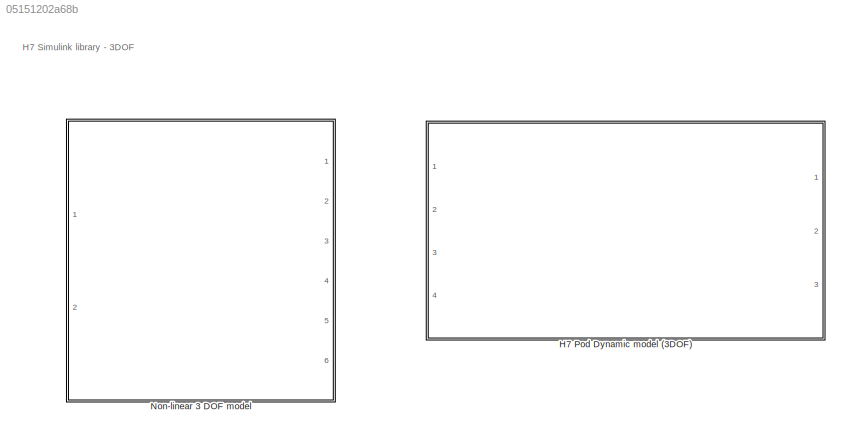
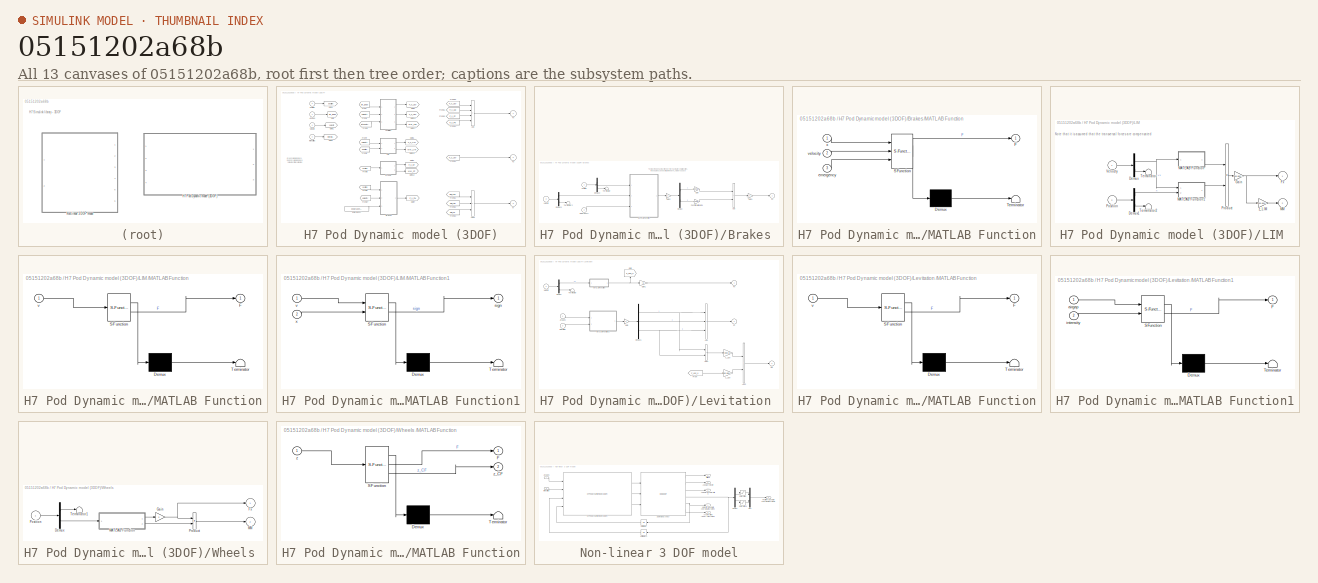
[diagram: thumbnail index - all 13 canvases of the model, root first then tree order]
MODEL slx_05151202a68b
KIND library
CONFIG AbsTol = auto
CONFIG EnableMultiTasking = off
CONFIG FixedStep = auto
CONFIG MaxStep = auto
CONFIG MinStep = auto
CONFIG RelTol = 1e-3
CONFIG SampleTimeConstraint = Unconstrained
CONFIG SolverName = VariableStepAuto
CONFIG StartTime = 0.0
CONFIG StopTime = 10.0
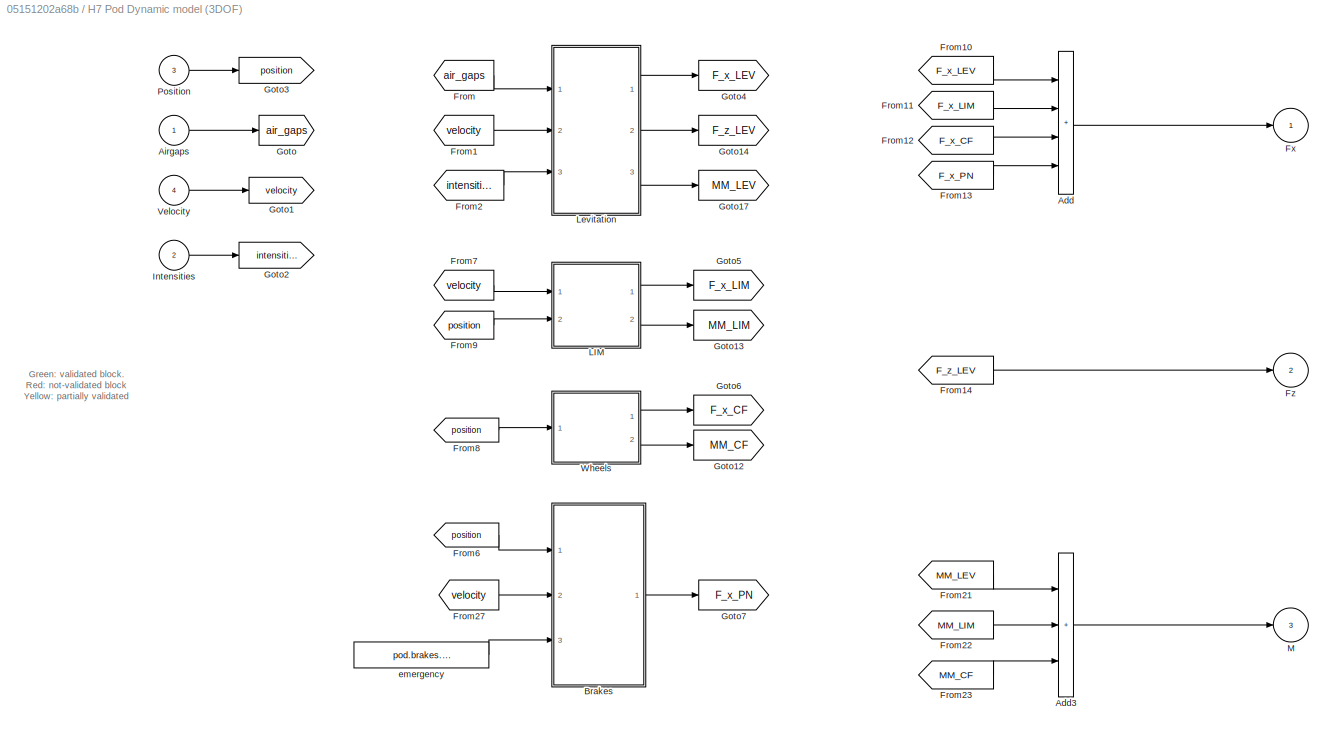
BLOCK [SubSystem] H7 Pod Dynamic model (3DOF)
  Ports = [4, 3]
  RequestExecContextInheritance = off
BLOCK [Sum] H7 Pod Dynamic model (3DOF)/Add
  IconShape = rectangular
  Inputs = ++++
  Ports = [4, 1]
BLOCK [Sum] H7 Pod Dynamic model (3DOF)/Add3
  IconShape = rectangular
  Inputs = +++
  Ports = [3, 1]
BLOCK [Inport] H7 Pod Dynamic model (3DOF)/Airgaps
BLOCK [SubSystem] H7 Pod Dynamic model (3DOF)/Brakes 
  AncestorBlock = libH7/H7 Pod Dynamic model/Brakes
  Ports = [3, 1]
  RequestExecContextInheritance = off
BLOCK [Sum] H7 Pod Dynamic model (3DOF)/Brakes /Add
  IconShape = rectangular
  Ports = [2, 1]
BLOCK [Demux] H7 Pod Dynamic model (3DOF)/Brakes /Demux
  Outputs = 2
  Ports = [1, 2]
BLOCK [Demux] H7 Pod Dynamic model (3DOF)/Brakes /Demux2
  Outputs = 2
  Ports = [1, 2]
BLOCK [Demux] H7 Pod Dynamic model (3DOF)/Brakes /Demux3
  Outputs = 2
  Ports = [1, 2]
BLOCK [Inport] H7 Pod Dynamic model (3DOF)/Brakes /Emergency
  Port = 3
BLOCK [Gain] H7 Pod Dynamic model (3DOF)/Brakes /Functionality gains
  Gain = pod.brakes.working_actuators(2)
BLOCK [Outport] H7 Pod Dynamic model (3DOF)/Brakes /Fx
BLOCK [Gain] H7 Pod Dynamic model (3DOF)/Brakes /Gain
  Gain = pod.brakes.working_actuators(1)
BLOCK [Gain] H7 Pod Dynamic model (3DOF)/Brakes /Gain1
  Gain = -1
BLOCK [Gain] H7 Pod Dynamic model (3DOF)/Brakes /Gain2
  Gain = 2
BLOCK [SubSystem] H7 Pod Dynamic model (3DOF)/Brakes /MATLAB Function
  ErrorFcn = Stateflow.Translate.translate
  PermitHierarchicalResolution = ExplicitOnly
  Ports = [3, 1]
  RequestExecContextInheritance = off
  SFBlockType = MATLAB Function
  TreatAsAtomicUnit = on
BLOCK [Demux] H7 Pod Dynamic model (3DOF)/Brakes /MATLAB Function/ Demux 
  Outputs = 1
  Ports = [1, 1]
BLOCK [S-Function] H7 Pod Dynamic model (3DOF)/Brakes /MATLAB Function/ SFunction 
  EnableBusSupport = off
  FunctionName = sf_sfun
  Parameters = pod
  PortCounts = [3 2]
  Ports = [3, 2]
  SFcnIsStateOwnerBlock = off
  SFunctionDeploymentMode = off
  Tag = Stateflow S-Function 16
BLOCK [Terminator] H7 Pod Dynamic model (3DOF)/Brakes /MATLAB Function/ Terminator 
BLOCK [Outport] H7 Pod Dynamic model (3DOF)/Brakes /MATLAB Function/F
BLOCK [Inport] H7 Pod Dynamic model (3DOF)/Brakes /MATLAB Function/emergency
  Port = 3
BLOCK [Inport] H7 Pod Dynamic model (3DOF)/Brakes /MATLAB Function/velocity
  Port = 2
BLOCK [Inport] H7 Pod Dynamic model (3DOF)/Brakes /MATLAB Function/x
BLOCK [Inport] H7 Pod Dynamic model (3DOF)/Brakes /Position
BLOCK [Terminator] H7 Pod Dynamic model (3DOF)/Brakes /Terminator
BLOCK [Terminator] H7 Pod Dynamic model (3DOF)/Brakes /Terminator2
BLOCK [Inport] H7 Pod Dynamic model (3DOF)/Brakes /velocity
  Port = 2
BLOCK [From] H7 Pod Dynamic model (3DOF)/From
  GotoTag = air_gaps
BLOCK [From] H7 Pod Dynamic model (3DOF)/From1
  GotoTag = velocity
BLOCK [From] H7 Pod Dynamic model (3DOF)/From10
  GotoTag = F_x_LEV
BLOCK [From] H7 Pod Dynamic model (3DOF)/From11
  GotoTag = F_x_LIM
BLOCK [From] H7 Pod Dynamic model (3DOF)/From12
  Commented = on
  GotoTag = F_x_CF
BLOCK [From] H7 Pod Dynamic model (3DOF)/From13
  GotoTag = F_x_PN
BLOCK [From] H7 Pod Dynamic model (3DOF)/From14
  GotoTag = F_z_LEV
BLOCK [From] H7 Pod Dynamic model (3DOF)/From2
  GotoTag = intensities
BLOCK [From] H7 Pod Dynamic model (3DOF)/From21
  GotoTag = MM_LEV
BLOCK [From] H7 Pod Dynamic model (3DOF)/From22
  GotoTag = MM_LIM
BLOCK [From] H7 Pod Dynamic model (3DOF)/From23
  Commented = on
  GotoTag = MM_CF
BLOCK [From] H7 Pod Dynamic model (3DOF)/From27
  GotoTag = velocity
BLOCK [From] H7 Pod Dynamic model (3DOF)/From6
  GotoTag = position
BLOCK [From] H7 Pod Dynamic model (3DOF)/From7
  GotoTag = velocity
BLOCK [From] H7 Pod Dynamic model (3DOF)/From8
  Commented = on
  GotoTag = position
BLOCK [From] H7 Pod Dynamic model (3DOF)/From9
  GotoTag = position
BLOCK [Outport] H7 Pod Dynamic model (3DOF)/Fx
BLOCK [Outport] H7 Pod Dynamic model (3DOF)/Fz
  Port = 2
BLOCK [Goto] H7 Pod Dynamic model (3DOF)/Goto
  GotoTag = air_gaps
BLOCK [Goto] H7 Pod Dynamic model (3DOF)/Goto1
  GotoTag = velocity
BLOCK [Goto] H7 Pod Dynamic model (3DOF)/Goto12
  Commented = on
  GotoTag = MM_CF
BLOCK [Goto] H7 Pod Dynamic model (3DOF)/Goto13
  GotoTag = MM_LIM
BLOCK [Goto] H7 Pod Dynamic model (3DOF)/Goto14
  GotoTag = F_z_LEV
BLOCK [Goto] H7 Pod Dynamic model (3DOF)/Goto17
  GotoTag = MM_LEV
BLOCK [Goto] H7 Pod Dynamic model (3DOF)/Goto2
  GotoTag = intensities
BLOCK [Goto] H7 Pod Dynamic model (3DOF)/Goto3
  GotoTag = position
BLOCK [Goto] H7 Pod Dynamic model (3DOF)/Goto4
  GotoTag = F_x_LEV
BLOCK [Goto] H7 Pod Dynamic model (3DOF)/Goto5
  GotoTag = F_x_LIM
BLOCK [Goto] H7 Pod Dynamic model (3DOF)/Goto6
  Commented = on
  GotoTag = F_x_CF
BLOCK [Goto] H7 Pod Dynamic model (3DOF)/Goto7
  GotoTag = F_x_PN
BLOCK [Inport] H7 Pod Dynamic model (3DOF)/Intensities
  Port = 2
BLOCK [SubSystem] H7 Pod Dynamic model (3DOF)/LIM 
  AncestorBlock = libH7/H7 Pod Dynamic model/LIM
  Ports = [2, 2]
  RequestExecContextInheritance = off
BLOCK [Demux] H7 Pod Dynamic model (3DOF)/LIM /Demux
  Outputs = 2
  Ports = [1, 2]
BLOCK [Demux] H7 Pod Dynamic model (3DOF)/LIM /Demux1
  Outputs = 2
  Ports = [1, 2]
BLOCK [Outport] H7 Pod Dynamic model (3DOF)/LIM /Fx
BLOCK [Gain] H7 Pod Dynamic model (3DOF)/LIM /Gain
  Gain = pod.general.propulsion_on
BLOCK [SubSystem] H7 Pod Dynamic model (3DOF)/LIM /MATLAB Function
  ErrorFcn = Stateflow.Translate.translate
  PermitHierarchicalResolution = ExplicitOnly
  Ports = [1, 1]
  RequestExecContextInheritance = off
  SFBlockType = MATLAB Function
  TreatAsAtomicUnit = on
BLOCK [Demux] H7 Pod Dynamic model (3DOF)/LIM /MATLAB Function/ Demux 
  Outputs = 1
  Ports = [1, 1]
BLOCK [S-Function] H7 Pod Dynamic model (3DOF)/LIM /MATLAB Function/ SFunction 
  EnableBusSupport = off
  FunctionName = sf_sfun
  Parameters = pod
  PortCounts = [1 2]
  Ports = [1, 2]
  SFcnIsStateOwnerBlock = off
  SFunctionDeploymentMode = off
  Tag = Stateflow S-Function 17
BLOCK [Terminator] H7 Pod Dynamic model (3DOF)/LIM /MATLAB Function/ Terminator 
BLOCK [Outport] H7 Pod Dynamic model (3DOF)/LIM /MATLAB Function/F
BLOCK [Inport] H7 Pod Dynamic model (3DOF)/LIM /MATLAB Function/v
BLOCK [SubSystem] H7 Pod Dynamic model (3DOF)/LIM /MATLAB Function1
  ErrorFcn = Stateflow.Translate.translate
  PermitHierarchicalResolution = ExplicitOnly
  Ports = [2, 1]
  RequestExecContextInheritance = off
  SFBlockType = MATLAB Function
  TreatAsAtomicUnit = on
BLOCK [Demux] H7 Pod Dynamic model (3DOF)/LIM /MATLAB Function1/ Demux 
  Outputs = 1
  Ports = [1, 1]
BLOCK [S-Function] H7 Pod Dynamic model (3DOF)/LIM /MATLAB Function1/ SFunction 
  EnableBusSupport = off
  FunctionName = sf_sfun
  Parameters = pod
  PortCounts = [2 2]
  Ports = [2, 2]
  SFcnIsStateOwnerBlock = off
  SFunctionDeploymentMode = off
  Tag = Stateflow S-Function 18
BLOCK [Terminator] H7 Pod Dynamic model (3DOF)/LIM /MATLAB Function1/ Terminator 
BLOCK [Outport] H7 Pod Dynamic model (3DOF)/LIM /MATLAB Function1/sign
BLOCK [Inport] H7 Pod Dynamic model (3DOF)/LIM /MATLAB Function1/v
BLOCK [Inport] H7 Pod Dynamic model (3DOF)/LIM /MATLAB Function1/x
  Port = 2
BLOCK [Outport] H7 Pod Dynamic model (3DOF)/LIM /MM
  Port = 2
BLOCK [Inport] H7 Pod Dynamic model (3DOF)/LIM /Position
  Port = 2
BLOCK [Product] H7 Pod Dynamic model (3DOF)/LIM /Product
  Ports = [2, 1]
BLOCK [Terminator] H7 Pod Dynamic model (3DOF)/LIM /Terminator
BLOCK [Terminator] H7 Pod Dynamic model (3DOF)/LIM /Terminator2
BLOCK [Inport] H7 Pod Dynamic model (3DOF)/LIM /Velocity
BLOCK [Gain] H7 Pod Dynamic model (3DOF)/LIM /z_LIM
  Gain = pod.geometry.z_LIM
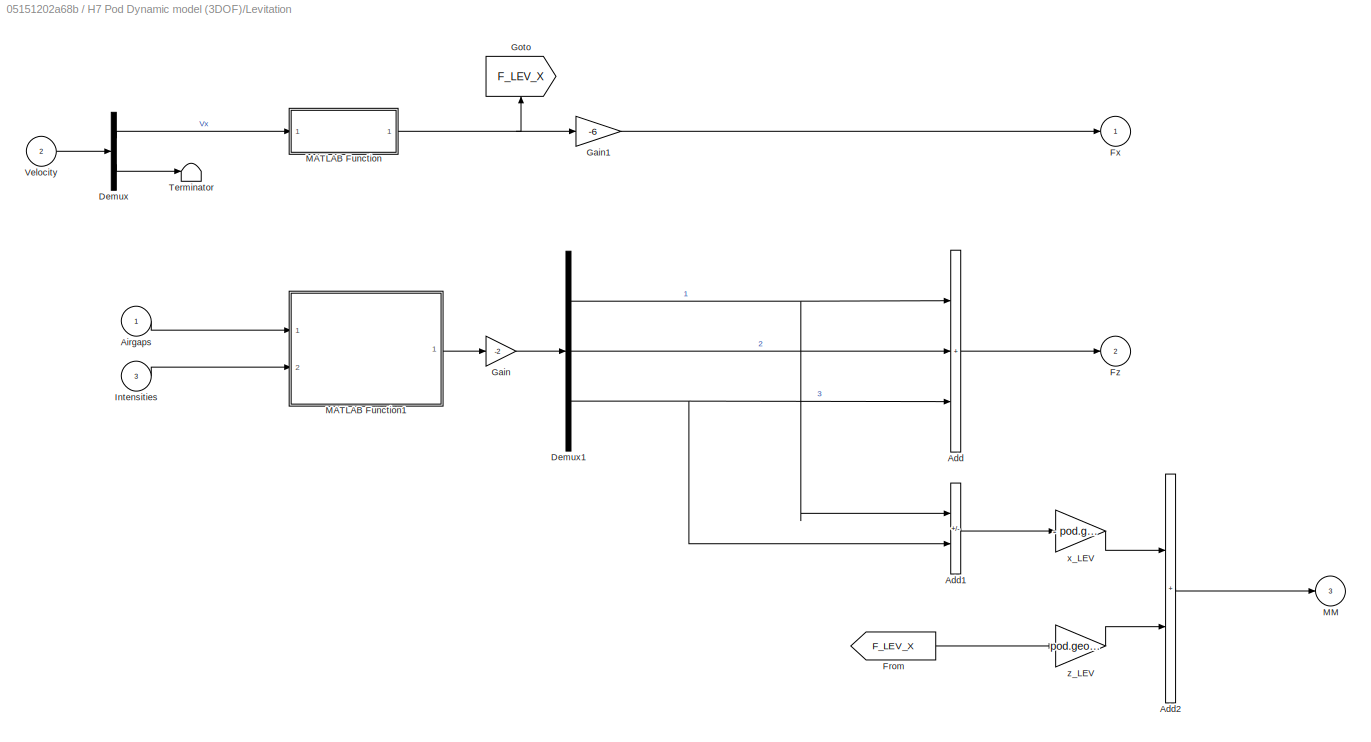
BLOCK [SubSystem] H7 Pod Dynamic model (3DOF)/Levitation 
  AncestorBlock = libH7/H7 Pod Dynamic model/Levitation
  Ports = [3, 3]
  RequestExecContextInheritance = off
BLOCK [Sum] H7 Pod Dynamic model (3DOF)/Levitation /Add
  IconShape = rectangular
  Inputs = +++
  Ports = [3, 1]
BLOCK [Sum] H7 Pod Dynamic model (3DOF)/Levitation /Add1
  IconShape = rectangular
  Inputs = +-
  Ports = [2, 1]
BLOCK [Sum] H7 Pod Dynamic model (3DOF)/Levitation /Add2
  IconShape = rectangular
  Ports = [2, 1]
BLOCK [Inport] H7 Pod Dynamic model (3DOF)/Levitation /Airgaps
BLOCK [Demux] H7 Pod Dynamic model (3DOF)/Levitation /Demux
  Outputs = 2
  Ports = [1, 2]
BLOCK [Demux] H7 Pod Dynamic model (3DOF)/Levitation /Demux1
  Outputs = 3
  Ports = [1, 3]
BLOCK [From] H7 Pod Dynamic model (3DOF)/Levitation /From
  GotoTag = F_LEV_X
BLOCK [Outport] H7 Pod Dynamic model (3DOF)/Levitation /Fx
BLOCK [Outport] H7 Pod Dynamic model (3DOF)/Levitation /Fz
  Port = 2
BLOCK [Gain] H7 Pod Dynamic model (3DOF)/Levitation /Gain
  Gain = -2
BLOCK [Gain] H7 Pod Dynamic model (3DOF)/Levitation /Gain1
  Gain = -6
BLOCK [Goto] H7 Pod Dynamic model (3DOF)/Levitation /Goto
  GotoTag = F_LEV_X
  NameLocation = right
BLOCK [Inport] H7 Pod Dynamic model (3DOF)/Levitation /Intensities
  Port = 3
BLOCK [SubSystem] H7 Pod Dynamic model (3DOF)/Levitation /MATLAB Function
  ErrorFcn = Stateflow.Translate.translate
  PermitHierarchicalResolution = ExplicitOnly
  Ports = [1, 1]
  RequestExecContextInheritance = off
  SFBlockType = MATLAB Function
  TreatAsAtomicUnit = on
BLOCK [Demux] H7 Pod Dynamic model (3DOF)/Levitation /MATLAB Function/ Demux 
  Outputs = 1
  Ports = [1, 1]
BLOCK [S-Function] H7 Pod Dynamic model (3DOF)/Levitation /MATLAB Function/ SFunction 
  EnableBusSupport = off
  FunctionName = sf_sfun
  Parameters = pod
  PortCounts = [1 2]
  Ports = [1, 2]
  SFcnIsStateOwnerBlock = off
  SFunctionDeploymentMode = off
  Tag = Stateflow S-Function 19
BLOCK [Terminator] H7 Pod Dynamic model (3DOF)/Levitation /MATLAB Function/ Terminator 
BLOCK [Outport] H7 Pod Dynamic model (3DOF)/Levitation /MATLAB Function/F
BLOCK [Inport] H7 Pod Dynamic model (3DOF)/Levitation /MATLAB Function/v
BLOCK [SubSystem] H7 Pod Dynamic model (3DOF)/Levitation /MATLAB Function1
  ErrorFcn = Stateflow.Translate.translate
  PermitHierarchicalResolution = ExplicitOnly
  Ports = [2, 1]
  RequestExecContextInheritance = off
  SFBlockType = MATLAB Function
  TreatAsAtomicUnit = on
BLOCK [Demux] H7 Pod Dynamic model (3DOF)/Levitation /MATLAB Function1/ Demux 
  Outputs = 1
  Ports = [1, 1]
BLOCK [S-Function] H7 Pod Dynamic model (3DOF)/Levitation /MATLAB Function1/ SFunction 
  EnableBusSupport = off
  FunctionName = sf_sfun
  Parameters = pod
  PortCounts = [2 2]
  Ports = [2, 2]
  SFcnIsStateOwnerBlock = off
  SFunctionDeploymentMode = off
  Tag = Stateflow S-Function 20
BLOCK [Terminator] H7 Pod Dynamic model (3DOF)/Levitation /MATLAB Function1/ Terminator 
BLOCK [Outport] H7 Pod Dynamic model (3DOF)/Levitation /MATLAB Function1/F
BLOCK [Inport] H7 Pod Dynamic model (3DOF)/Levitation /MATLAB Function1/airgap
BLOCK [Inport] H7 Pod Dynamic model (3DOF)/Levitation /MATLAB Function1/intensity
  Port = 2
BLOCK [Outport] H7 Pod Dynamic model (3DOF)/Levitation /MM
  Port = 3
BLOCK [Terminator] H7 Pod Dynamic model (3DOF)/Levitation /Terminator
BLOCK [Inport] H7 Pod Dynamic model (3DOF)/Levitation /Velocity
  Port = 2
BLOCK [Gain] H7 Pod Dynamic model (3DOF)/Levitation /x_LEV
  Gain = - pod.geometry.x_LEV
BLOCK [Gain] H7 Pod Dynamic model (3DOF)/Levitation /z_LEV
  Gain = pod.geometry.z_LEV
BLOCK [Outport] H7 Pod Dynamic model (3DOF)/M
  Port = 3
BLOCK [Inport] H7 Pod Dynamic model (3DOF)/Position
  Port = 3
BLOCK [Inport] H7 Pod Dynamic model (3DOF)/Velocity
  Port = 4
BLOCK [SubSystem] H7 Pod Dynamic model (3DOF)/Wheels 
  AncestorBlock = libH7/H7 Pod Dynamic model/Wheels
  Commented = on
  Ports = [1, 2]
  RequestExecContextInheritance = off
BLOCK [Demux] H7 Pod Dynamic model (3DOF)/Wheels /Demux
  Outputs = 2
  Ports = [1, 2]
BLOCK [Outport] H7 Pod Dynamic model (3DOF)/Wheels /Fx
BLOCK [Gain] H7 Pod Dynamic model (3DOF)/Wheels /Gain
  Gain = 2
BLOCK [SubSystem] H7 Pod Dynamic model (3DOF)/Wheels /MATLAB Function
  ErrorFcn = Stateflow.Translate.translate
  PermitHierarchicalResolution = ExplicitOnly
  Ports = [1, 2]
  RequestExecContextInheritance = off
  SFBlockType = MATLAB Function
  TreatAsAtomicUnit = on
BLOCK [Demux] H7 Pod Dynamic model (3DOF)/Wheels /MATLAB Function/ Demux 
  Outputs = 1
  Ports = [1, 1]
BLOCK [S-Function] H7 Pod Dynamic model (3DOF)/Wheels /MATLAB Function/ SFunction 
  EnableBusSupport = off
  FunctionName = sf_sfun
  Parameters = pod
  PortCounts = [1 3]
  Ports = [1, 3]
  SFcnIsStateOwnerBlock = off
  SFunctionDeploymentMode = off
  Tag = Stateflow S-Function 21
BLOCK [Terminator] H7 Pod Dynamic model (3DOF)/Wheels /MATLAB Function/ Terminator 
BLOCK [Outport] H7 Pod Dynamic model (3DOF)/Wheels /MATLAB Function/F
BLOCK [Inport] H7 Pod Dynamic model (3DOF)/Wheels /MATLAB Function/z
BLOCK [Outport] H7 Pod Dynamic model (3DOF)/Wheels /MATLAB Function/z_CF
  Port = 2
BLOCK [Outport] H7 Pod Dynamic model (3DOF)/Wheels /MM
  Port = 2
BLOCK [Inport] H7 Pod Dynamic model (3DOF)/Wheels /Position
BLOCK [Product] H7 Pod Dynamic model (3DOF)/Wheels /Product
  Ports = [2, 1]
BLOCK [Terminator] H7 Pod Dynamic model (3DOF)/Wheels /Terminator1
BLOCK [Constant] H7 Pod Dynamic model (3DOF)/emergency
  Value = pod.brakes.emergency_flag
BLOCK [SubSystem] Non-linear 3 DOF model
  Ports = [2, 6]
  RequestExecContextInheritance = off
BLOCK [EOM3DOF] Non-linear 3 DOF model/3dof (Body Axes)
  Iyy = pod.mass.inertia(2,2)
  Ports = [3, 6]
  mass = pod.mass.mass
  pos_ini = initial_conds.x_0(1:2:3)
  q_ini = initial_conds.w_0(2)
  theta_ini = initial_conds.ang_0(2)
  v_ini = 1e-10
BLOCK [Outport] Non-linear 3 DOF model/Acceleration (body-fixed coordinate system)
  Port = 3
BLOCK [Inport] Non-linear 3 DOF model/Airgaps
BLOCK [Outport] Non-linear 3 DOF model/Angular acceleration
  Port = 6
BLOCK [Outport] Non-linear 3 DOF model/Angular velocity
  Port = 5
BLOCK [Outport] Non-linear 3 DOF model/Attitude 
  Port = 4
BLOCK [Demux] Non-linear 3 DOF model/Demux
  Outputs = 2
  Ports = [1, 2]
BLOCK [Reference] Non-linear 3 DOF model/H7 Pod Dynamic model (3DOF)  REF=$bdroot/H7 Pod Dynamic model (3DOF)
  Ports = [4, 3]
  SourceBlock = $bdroot/H7 Pod Dynamic model (3DOF)
BLOCK [Inport] Non-linear 3 DOF model/Intensities
  Port = 2
BLOCK [Mux] Non-linear 3 DOF model/Mux
  DisplayOption = bar
  Inputs = 2
  Ports = [2, 1]
BLOCK [Outport] Non-linear 3 DOF model/Position (absolute coordinate system)
  Port = 2
BLOCK [Saturate] Non-linear 3 DOF model/Saturation
  LowerLimit = 0
  UpperLimit = 20
BLOCK [Saturate] Non-linear 3 DOF model/Saturation1
  LowerLimit = pod.geometry.z_LEV + 0.012
  UpperLimit = pod.geometry.z_LEV + 0.023
BLOCK [UnitDelay] Non-linear 3 DOF model/Unit Delay
  HasFrameUpgradeWarning = on
  InitialCondition = [0,0]
  NameLocation = top
  SampleTime = -1
BLOCK [UnitDelay] Non-linear 3 DOF model/Unit Delay1
  HasFrameUpgradeWarning = on
  InitialCondition = initial_conds.x_0(1:2:3)
  NameLocation = top
  SampleTime = -1
BLOCK [Outport] Non-linear 3 DOF model/Velocity (absolute coordinate system)
ANNOTATION (root): H7 Simulink library - 3DOF
ANNOTATION H7 Pod Dynamic model (3DOF): Green: validated block. Red: not-validated block Yellow: partially validated
ANNOTATION H7 Pod Dynamic model (3DOF)/Brakes : To study the behaviour if one or more actuators malfunction, these gains can be set to 0 in the MATLAB workspace
ANNOTATION H7 Pod Dynamic model (3DOF)/LIM : Note that it is assumed that the transversal forces are compensated
LINE H7 Pod Dynamic model (3DOF)/Add3:1 -> H7 Pod Dynamic model (3DOF)/M:1
LINE H7 Pod Dynamic model (3DOF)/Add:1 -> H7 Pod Dynamic model (3DOF)/Fx:1
LINE H7 Pod Dynamic model (3DOF)/Airgaps:1 -> H7 Pod Dynamic model (3DOF)/Goto:1
LINE H7 Pod Dynamic model (3DOF)/Brakes :1 -> H7 Pod Dynamic model (3DOF)/Goto7:1
LINE H7 Pod Dynamic model (3DOF)/From10:1 -> H7 Pod Dynamic model (3DOF)/Add:1
LINE H7 Pod Dynamic model (3DOF)/From11:1 -> H7 Pod Dynamic model (3DOF)/Add:2
LINE H7 Pod Dynamic model (3DOF)/From12:1 -> H7 Pod Dynamic model (3DOF)/Add:3
LINE H7 Pod Dynamic model (3DOF)/From13:1 -> H7 Pod Dynamic model (3DOF)/Add:4
LINE H7 Pod Dynamic model (3DOF)/From14:1 -> H7 Pod Dynamic model (3DOF)/Fz:1
LINE H7 Pod Dynamic model (3DOF)/From1:1 -> H7 Pod Dynamic model (3DOF)/Levitation :2
LINE H7 Pod Dynamic model (3DOF)/From21:1 -> H7 Pod Dynamic model (3DOF)/Add3:1
LINE H7 Pod Dynamic model (3DOF)/From22:1 -> H7 Pod Dynamic model (3DOF)/Add3:2
LINE H7 Pod Dynamic model (3DOF)/From23:1 -> H7 Pod Dynamic model (3DOF)/Add3:3
LINE H7 Pod Dynamic model (3DOF)/From27:1 -> H7 Pod Dynamic model (3DOF)/Brakes :2
LINE H7 Pod Dynamic model (3DOF)/From2:1 -> H7 Pod Dynamic model (3DOF)/Levitation :3
LINE H7 Pod Dynamic model (3DOF)/From6:1 -> H7 Pod Dynamic model (3DOF)/Brakes :1
LINE H7 Pod Dynamic model (3DOF)/From7:1 -> H7 Pod Dynamic model (3DOF)/LIM :1
LINE H7 Pod Dynamic model (3DOF)/From8:1 -> H7 Pod Dynamic model (3DOF)/Wheels :1
LINE H7 Pod Dynamic model (3DOF)/From9:1 -> H7 Pod Dynamic model (3DOF)/LIM :2
LINE H7 Pod Dynamic model (3DOF)/From:1 -> H7 Pod Dynamic model (3DOF)/Levitation :1
LINE H7 Pod Dynamic model (3DOF)/Intensities:1 -> H7 Pod Dynamic model (3DOF)/Goto2:1
LINE H7 Pod Dynamic model (3DOF)/LIM :1 -> H7 Pod Dynamic model (3DOF)/Goto5:1
LINE H7 Pod Dynamic model (3DOF)/LIM :2 -> H7 Pod Dynamic model (3DOF)/Goto13:1
LINE H7 Pod Dynamic model (3DOF)/Levitation :1 -> H7 Pod Dynamic model (3DOF)/Goto4:1
LINE H7 Pod Dynamic model (3DOF)/Levitation :2 -> H7 Pod Dynamic model (3DOF)/Goto14:1
LINE H7 Pod Dynamic model (3DOF)/Levitation :3 -> H7 Pod Dynamic model (3DOF)/Goto17:1
LINE H7 Pod Dynamic model (3DOF)/Position:1 -> H7 Pod Dynamic model (3DOF)/Goto3:1
LINE H7 Pod Dynamic model (3DOF)/Velocity:1 -> H7 Pod Dynamic model (3DOF)/Goto1:1
LINE H7 Pod Dynamic model (3DOF)/Wheels :1 -> H7 Pod Dynamic model (3DOF)/Goto6:1
LINE H7 Pod Dynamic model (3DOF)/Wheels :2 -> H7 Pod Dynamic model (3DOF)/Goto12:1
LINE H7 Pod Dynamic model (3DOF)/emergency:1 -> H7 Pod Dynamic model (3DOF)/Brakes :3
LINE Non-linear 3 DOF model/3dof (Body Axes):1 -> Non-linear 3 DOF model/Attitude :1
LINE Non-linear 3 DOF model/3dof (Body Axes):2 -> Non-linear 3 DOF model/Angular velocity:1
LINE Non-linear 3 DOF model/3dof (Body Axes):3 -> Non-linear 3 DOF model/Angular acceleration:1
NET Non-linear 3 DOF model/3dof (Body Axes):4 -> Non-linear 3 DOF model/Demux:1, Non-linear 3 DOF model/Unit Delay1:1
NET Non-linear 3 DOF model/3dof (Body Axes):5 -> Non-linear 3 DOF model/Unit Delay:1, Non-linear 3 DOF model/Velocity (absolute coordinate system):1
LINE Non-linear 3 DOF model/3dof (Body Axes):6 -> Non-linear 3 DOF model/Acceleration (body-fixed coordinate system):1
LINE Non-linear 3 DOF model/Airgaps:1 -> Non-linear 3 DOF model/H7 Pod Dynamic model (3DOF):1
LINE Non-linear 3 DOF model/Demux:1 -> Non-linear 3 DOF model/Saturation:1
LINE Non-linear 3 DOF model/Demux:2 -> Non-linear 3 DOF model/Saturation1:1
LINE Non-linear 3 DOF model/H7 Pod Dynamic model (3DOF):1 -> Non-linear 3 DOF model/3dof (Body Axes):1
LINE Non-linear 3 DOF model/H7 Pod Dynamic model (3DOF):2 -> Non-linear 3 DOF model/3dof (Body Axes):2
LINE Non-linear 3 DOF model/H7 Pod Dynamic model (3DOF):3 -> Non-linear 3 DOF model/3dof (Body Axes):3
LINE Non-linear 3 DOF model/Intensities:1 -> Non-linear 3 DOF model/H7 Pod Dynamic model (3DOF):2
LINE Non-linear 3 DOF model/Mux:1 -> Non-linear 3 DOF model/Position (absolute coordinate system):1
LINE Non-linear 3 DOF model/Saturation1:1 -> Non-linear 3 DOF model/Mux:2
LINE Non-linear 3 DOF model/Saturation:1 -> Non-linear 3 DOF model/Mux:1
LINE Non-linear 3 DOF model/Unit Delay1:1 -> Non-linear 3 DOF model/H7 Pod Dynamic model (3DOF):3
LINE Non-linear 3 DOF model/Unit Delay:1 -> Non-linear 3 DOF model/H7 Pod Dynamic model (3DOF):4
note: NET lines group one-source signal fan-out (src -> all destinations, sorted); 1:1 wires keep LINE
CHART H7 Pod Dynamic model (3DOF)/Brakes /MATLAB Function states=1 transitions=1
  STATE_LABEL 'eML_blk_kernel()'
  STATE_LABEL 'SCRIPT:\nfunction F  = brakes_activation(x, velocity, emergency, pod)\n% Computes the braking force of the pneumatic actuators if and only if \n%     (1) The emergency flag has been raised\n%     (2) The pod is above the acceleration phase distance\n% ═════════════════════════════════════════════════════════════════════════\n% Last updated: 20.12.2021\n% ══════════════════════════════════════════════════...<+214ch>'
CHART H7 Pod Dynamic model (3DOF)/LIM /MATLAB Function states=1 transitions=1
  STATE_LABEL 'eML_blk_kernel()'
  STATE_LABEL 'SCRIPT:\nfunction F = LIMtraction(v, pod)\n% Computes the traction force (N) of the LIM as a function of \n% the absolute velocity of the prototype (m/s)\n% ═════════════════════════════════════════════════════════════════════════\n% Last updated: 20.12.2021\n% ═════════════════════════════════════════════════════════════════════════\n\nF = pod.propulsion.poly.p3*v^3 + ...\n    pod.propulsion.poly.p2*v^2 +...<+69ch>'
CHART H7 Pod Dynamic model (3DOF)/LIM /MATLAB Function1 states=1 transitions=1
  STATE_LABEL 'eML_blk_kernel()'
  STATE_LABEL 'SCRIPT:\nfunction sign = LIMdirection(v, x, pod)\n% Decides if the LIM force is being applied to accelerate or to brake \n% by comparing the position of the pod with a predefined treshold\n% ═════════════════════════════════════════════════════════════════════════\n% Last updated: 20.12.2021\n% ═════════════════════════════════════════════════════════════════════════\n\nif x >= pod.brakes.d && v > 0    \n ...<+85ch>'
CHART H7 Pod Dynamic model (3DOF)/Levitation /MATLAB Function states=1 transitions=1
  STATE_LABEL 'eML_blk_kernel()'
  STATE_LABEL 'SCRIPT:\nfunction F = HEMSdrag(v, pod)\n% Computes the drag force (N) of one HEMS unit as a function of the \n% velocity (m/s)\n% ═════════════════════════════════════════════════════════════════════════\n% Last updated: 16.01.2022\n% ═════════════════════════════════════════════════════════════════════════\n\nif v < 1e-3\n    v = 0;\nend\n\nF = pod.levitation.drag_1_unit.poly.p3*v^3 + ...\n    pod.levitation....<+121ch>'
CHART H7 Pod Dynamic model (3DOF)/Levitation /MATLAB Function1 states=1 transitions=1
  STATE_LABEL 'eML_blk_kernel()'
  STATE_LABEL 'SCRIPT:\nfunction F = HEMSlev(airgap, intensity, pod)\n% Computes the levitation force (N) of all the HEMS units as a function of \n% their air gaps (mm) and intensities (A)\n% ═════════════════════════════════════════════════════════════════════════\n% Last updated: 15.12.2021\n% ════════════════════════════════════════════════════════════════════════\n\nx   = airgap;\ny   = intensity;\n\nF = pod.levitation...<+396ch>'
CHART H7 Pod Dynamic model (3DOF)/Wheels /MATLAB Function states=1 transitions=1
  STATE_LABEL 'eML_blk_kernel()'
  STATE_LABEL 'SCRIPT:\nfunction [F, z_CF] = rollingFriction(z, pod)\n% Computes the rolling resistance force (N) of the wheels. It distinguishes\n% 3 cases: \n%   (1) z = 0. Pod touching the ground\n%   (2) z = z_max. Pod touching the ceiling. It is assumed no current\n%   applied to the HEMS. \n%   (3) Otherwise. Pod levitating. \n% ═════════════════════════════════════════════════════════════════════════\n% Last updat...<+920ch>'
CHART  states=0 transitions=0
CHART  states=0 transitions=0
CHART  states=0 transitions=0
CHART  states=0 transitions=0
CHART  states=0 transitions=0
CHART  states=0 transitions=0
